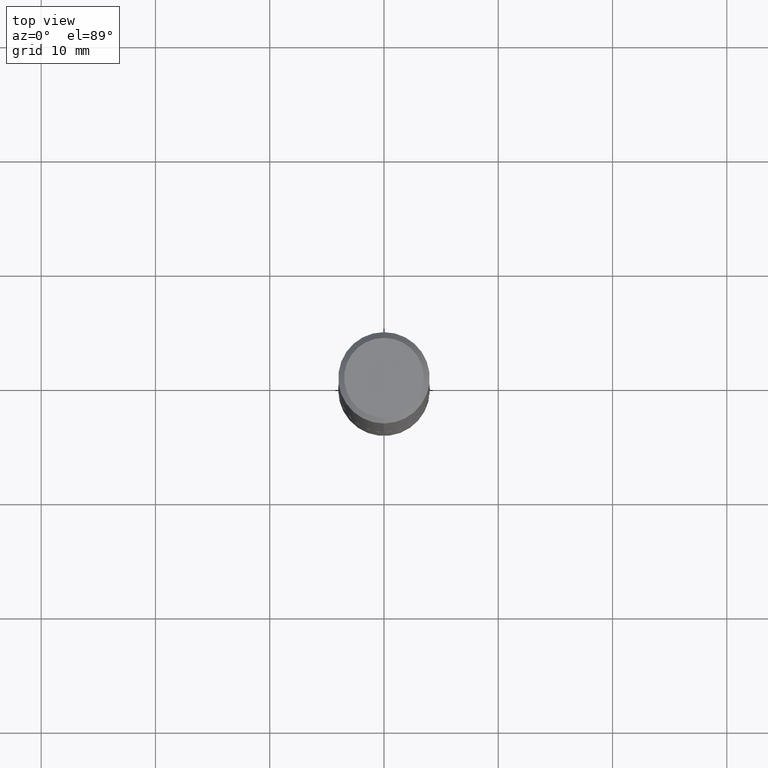
[diagram: clean part render]
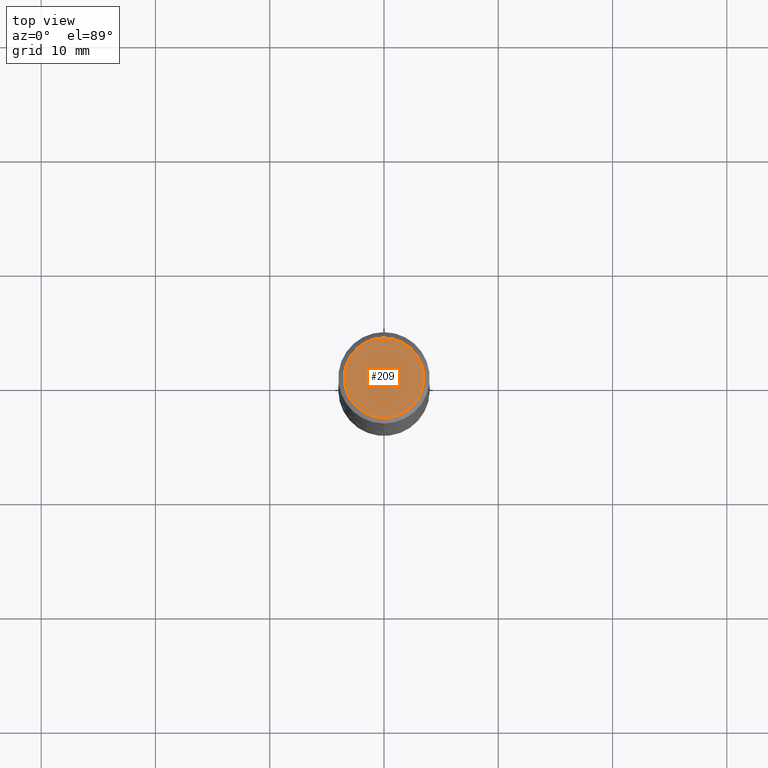
[diagram: same view with one face highlighted and labeled with its STEP entity id]
A machine part, top view. The second image highlights one B-rep face of the part: STEP entity #209.
In plain terms, the highlighted planar face has unit normal (0, -0, -1).
Its self-contained STEP definition (entity closure, byte-faithful):
#31 = EDGE_CURVE ( 'NONE', #364, #238, #178, .T. ) ;
#37 = CARTESIAN_POINT ( 'NONE',  ( 9.601573681818640393E-16, 0.1375000000000003442, -6.246930207500991880E-16 ) ) ;
#57 = CARTESIAN_POINT ( 'NONE',  ( 7.138621815623507865E-45, -1.014847803692176449E-30, -2.912890253353251717E-16 ) ) ;
#83 = CARTESIAN_POINT ( 'NONE',  ( 1.029986994958725760E-15, 0.1375000000000003442, -7.703375334177617246E-16 ) ) ;
#95 = CARTESIAN_POINT ( 'NONE',  ( 7.138621815623507865E-45, -1.014847803692176449E-30, -2.912890253353251717E-16 ) ) ;
#119 = ORIENTED_EDGE ( 'NONE', *, *, #191, .T. ) ;
#120 = AXIS2_PLACEMENT_3D ( 'NONE', #37, #255, #413 ) ;
#137 = CIRCLE ( 'NONE', #362, 0.1375000000000003442 ) ;
#144 = EDGE_LOOP ( 'NONE', ( #330, #119 ) ) ;
#178 = CIRCLE ( 'NONE', #236, 0.1375000000000003442 ) ;
#183 = DIRECTION ( 'NONE',  ( -2.450700573907887962E-29, 3.483989149690439338E-15, 1.000000000000000000 ) ) ;
#191 = EDGE_CURVE ( 'NONE', #238, #364, #137, .T. ) ;
#209 = ADVANCED_FACE ( 'NONE', ( #416 ), #354, .F. ) ;
#236 = AXIS2_PLACEMENT_3D ( 'NONE', #57, #183, #313 ) ;
#238 = VERTEX_POINT ( 'NONE', #380 ) ;
#255 = DIRECTION ( 'NONE',  ( 2.450700573907887962E-29, -3.483989149690438944E-15, -1.000000000000000000 ) ) ;
#258 = DIRECTION ( 'NONE',  ( -2.450700573907887962E-29, 3.483989149690439338E-15, 1.000000000000000000 ) ) ;
#313 = DIRECTION ( 'NONE',  ( -6.982962677686266711E-15, -1.000000000000000000, 3.483989149690439733E-15 ) ) ;
#327 = DIRECTION ( 'NONE',  ( -6.982962677686266711E-15, -1.000000000000000000, 3.483989149690439733E-15 ) ) ;
#330 = ORIENTED_EDGE ( 'NONE', *, *, #31, .T. ) ;
#354 = PLANE ( 'NONE',  #120 ) ;
#362 = AXIS2_PLACEMENT_3D ( 'NONE', #95, #258, #327 ) ;
#364 = VERTEX_POINT ( 'NONE', #83 ) ;
#380 = CARTESIAN_POINT ( 'NONE',  ( -1.011923454671301828E-15, -0.1375000000000003442, 1.877594827471114305E-16 ) ) ;
#413 = DIRECTION ( 'NONE',  ( 6.982962677686265922E-15, 1.000000000000000000, -3.483989149690438944E-15 ) ) ;
#416 = FACE_OUTER_BOUND ( 'NONE', #144, .T. ) ;